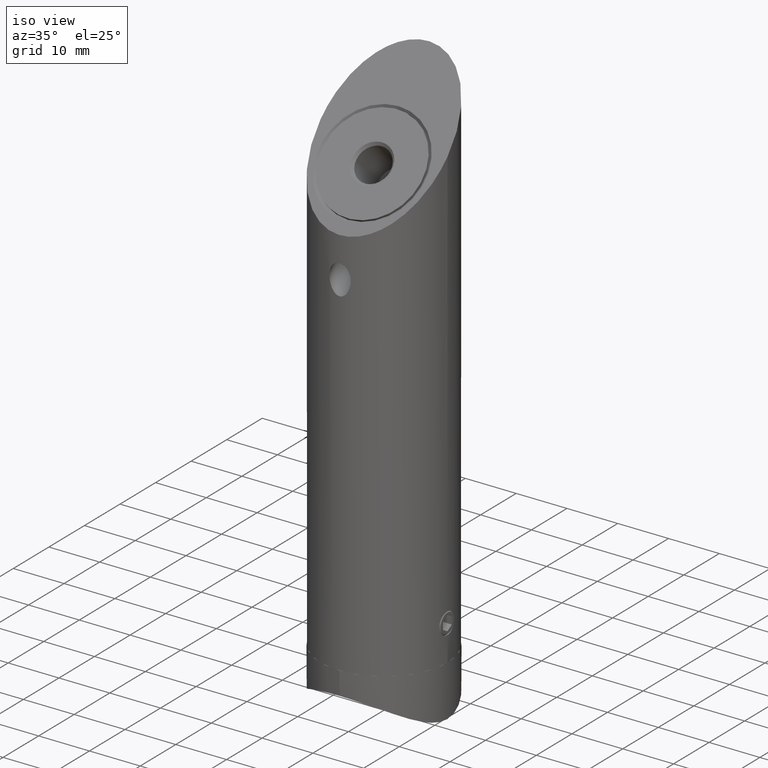
[diagram: clean part render]
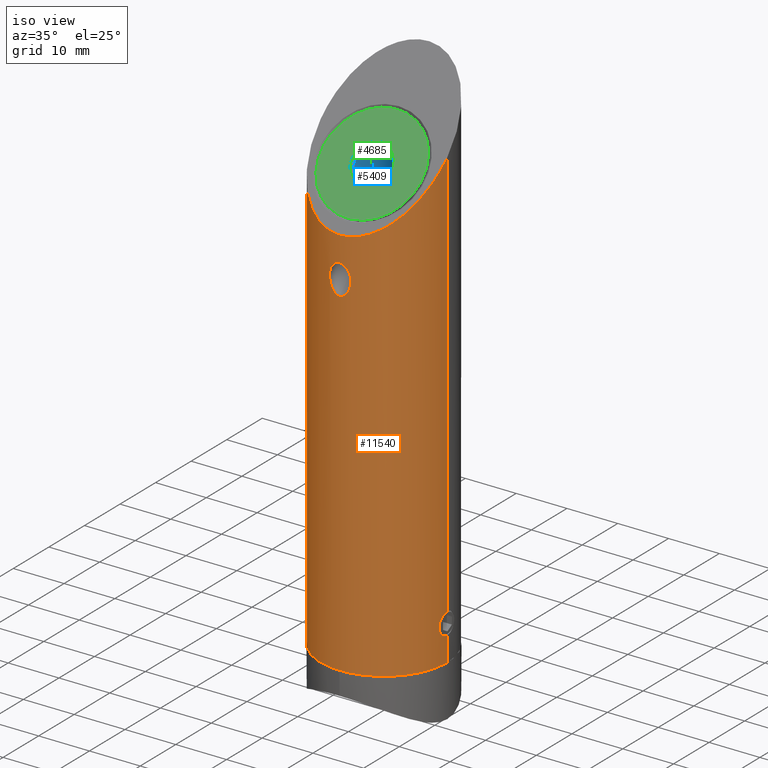
[diagram: same view with three faces highlighted in distinct colors, each labeled with its STEP entity id]
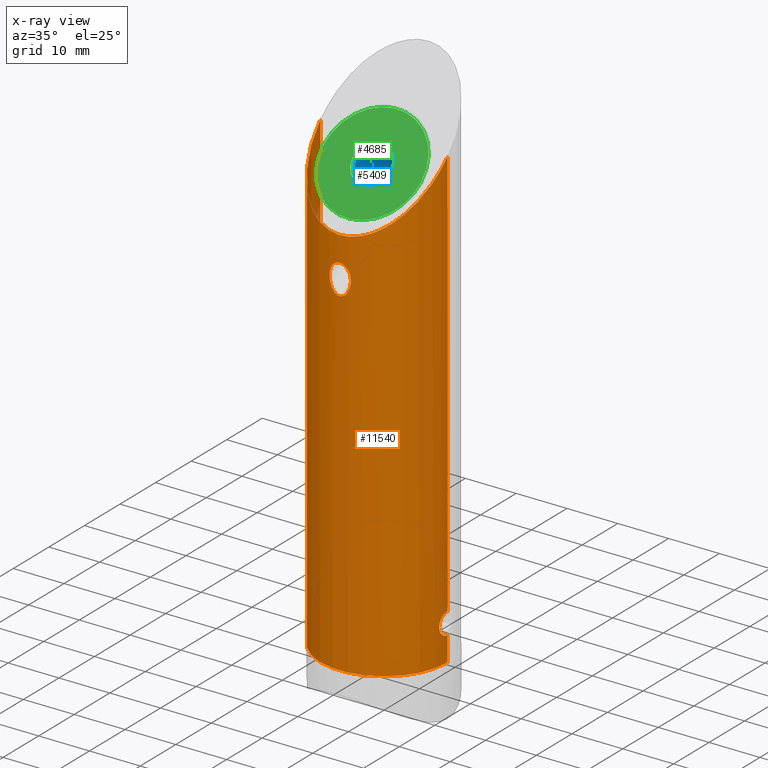
[diagram: x-ray of the same camera — body ghosted, the three highlighted faces saturated]
A machine part, iso view with three faces highlighted in distinct colors.
The next image is the same camera in x-ray (body ghosted, the three faces saturated) — at least one of them is partly hidden behind the body in this view.
Their STEP definitions:

[orange] entity #11540 — the highlighted cylindrical surface (partial cylindrical patch) has radius 12.5 mm, axis along (-0, -0, -1).
#348 = ORIENTED_EDGE ( 'NONE', *, *, #10075, .T. ) ;
#541 = CARTESIAN_POINT ( 'NONE',  ( -1.062516582818185300, -12.45547859006742400, 67.05464212441687300 ) ) ;
#552 = CARTESIAN_POINT ( 'NONE',  ( -12.50000000000000000, 0.0000000000000000000, 90.00000000000000000 ) ) ;
#588 = VERTEX_POINT ( 'NONE', #1897 ) ;
#637 = CARTESIAN_POINT ( 'NONE',  ( 0.1695567976927992400, -12.49999999999999300, 72.55025253169417000 ) ) ;
#654 = CARTESIAN_POINT ( 'NONE',  ( -2.103163457737206300, -12.32179908008548400, 69.79001288612603600 ) ) ;
#692 = EDGE_CURVE ( 'NONE', #588, #11380, #12602, .T. ) ;
#712 = CARTESIAN_POINT ( 'NONE',  ( -0.6518177033581321600, -12.48399674781630600, 66.76388248511807400 ) ) ;
#771 = CARTESIAN_POINT ( 'NONE',  ( -12.36656387944243600, -1.823189292361666800, 5.948889033415843700 ) ) ;
#772 = CARTESIAN_POINT ( 'NONE',  ( -0.6577339198468583600, -12.48370125618959200, 72.42663966130271500 ) ) ;
#835 =( BOUNDED_CURVE ( )  B_SPLINE_CURVE ( 3, ( #4357, #11078, #15218, #15042 ),
 .UNSPECIFIED., .F., .F. ) 
 B_SPLINE_CURVE_WITH_KNOTS ( ( 4, 4 ),
 ( 4.712388980384689700, 7.853981633974482800 ),
 .UNSPECIFIED. ) 
 CURVE ( )  GEOMETRIC_REPRESENTATION_ITEM ( )  RATIONAL_B_SPLINE_CURVE ( ( 1.000000000000000000, 0.3333333333333333700, 0.3333333333333333700, 1.000000000000000000 ) ) 
 REPRESENTATION_ITEM ( '' )  );
#888 = CARTESIAN_POINT ( 'NONE',  ( -12.39980942031196600, -1.582460249035299500, 5.612741714926296600 ) ) ;
#1018 = ORIENTED_EDGE ( 'NONE', *, *, #16261, .F. ) ;
#1263 = CARTESIAN_POINT ( 'NONE',  ( 0.0000000000000000000, 0.0000000000000000000, 105.0000000000000000 ) ) ;
#1512 = CARTESIAN_POINT ( 'NONE',  ( 12.43467607152728100, -1.281348397245132500, 8.669381187940407700 ) ) ;
#1569 = CARTESIAN_POINT ( 'NONE',  ( 12.38831158150507700, -1.678584206747422100, 5.708823716378408800 ) ) ;
#1635 = CARTESIAN_POINT ( 'NONE',  ( 12.50000000000000200, 0.0000000000000000000, 4.900000000000008300 ) ) ;
#1682 = CARTESIAN_POINT ( 'NONE',  ( 12.43473698676050900, -1.280796030087369100, 5.330156330372838100 ) ) ;
#1880 = ORIENTED_EDGE ( 'NONE', *, *, #692, .T. ) ;
#1897 = CARTESIAN_POINT ( 'NONE',  ( -12.50000000000000000, -9.798520189840709700E-023, 9.099999999999992500 ) ) ;
#1991 = CARTESIAN_POINT ( 'NONE',  ( 1.090959842866090700, -12.45310118065757100, 72.17473820949946600 ) ) ;
#2011 = CARTESIAN_POINT ( 'NONE',  ( -1.933220394755653200, -12.34982528506187700, 70.94264168083583400 ) ) ;
#2070 = CARTESIAN_POINT ( 'NONE',  ( -1.812558932214285700, -12.36913040206632700, 71.26170826907900800 ) ) ;
#2133 = CARTESIAN_POINT ( 'NONE',  ( -12.50000000000000000, -0.1389824923851660200, 4.900000000000008300 ) ) ;
#2134 = CARTESIAN_POINT ( 'NONE',  ( -0.1694388445975921200, -12.50000000000000200, 66.61055556972719700 ) ) ;
#2180 = CARTESIAN_POINT ( 'NONE',  ( -12.50000000000000500, -0.2743003893079645200, 9.099999999999992500 ) ) ;
#2219 = CARTESIAN_POINT ( 'NONE',  ( 1.489719814512700900, -12.41119661175083300, 67.56845414696788100 ) ) ;
#2300 = CARTESIAN_POINT ( 'NONE',  ( -12.34024839959371500, -1.992762697854679300, 6.323402791177532100 ) ) ;
#2602 = LINE ( 'NONE', #8563, #3261 ) ;
#2677 = B_SPLINE_CURVE_WITH_KNOTS ( 'NONE', 3,
 ( #10158, #637, #12980, #8982, #14216, #1991, #3539, #14275, #3364, #12855, #4697, #6136, #3476, #14455, #15686, #7507, #17033, #8869, #14336, #13038, #4882, #2219, #6253, #15754, #17154, #10344, #11749, #3596, #13099, #13222 ),
 .UNSPECIFIED., .F., .F.,
 ( 4, 2, 2, 2, 2, 2, 2, 2, 2, 2, 2, 2, 2, 2, 4 ),
 ( 0.0000000000000000000, 0.0005006832540054194800, 0.001001366508010839000, 0.001502049762016258300, 0.002002733016021677900, 0.002503416270027097100, 0.003004099524032516700, 0.004005466032043316000, 0.005006832540054114400, 0.005507515794059513600, 0.006008199048064912800, 0.006508882302070311200, 0.007009565556075710400, 0.007510248810081109600, 0.008010932064086508800 ),
 .UNSPECIFIED. ) ;
#2829 = CARTESIAN_POINT ( 'NONE',  ( 12.33211929933789400, -2.044525624529530500, 6.447994004894129100 ) ) ;
#2886 = CARTESIAN_POINT ( 'NONE',  ( 12.46591754872634700, -0.9311833701841315500, 8.887274739406741700 ) ) ;
#3168 = LINE ( 'NONE', #4736, #15912 ) ;
#3207 = CARTESIAN_POINT ( 'NONE',  ( -2.068616559615548100, -12.32765416876413800, 70.29188526287325100 ) ) ;
#3261 = VECTOR ( 'NONE', #16836, 1000.000000000000000 ) ;
#3364 = CARTESIAN_POINT ( 'NONE',  ( 1.552417140451911600, -12.40353673432070100, 71.68656320522494200 ) ) ;
#3436 = CARTESIAN_POINT ( 'NONE',  ( -12.43448438498407400, -1.292831960822520300, 5.322725580530755200 ) ) ;
#3441 = CARTESIAN_POINT ( 'NONE',  ( -1.220165958684657400, -12.44084112958514000, 72.06580074404666900 ) ) ;
#3476 = CARTESIAN_POINT ( 'NONE',  ( 1.970194185464487300, -12.34381305217784700, 70.77957955059031300 ) ) ;
#3539 = CARTESIAN_POINT ( 'NONE',  ( 1.221010805900625700, -12.44075727652513800, 72.06502474095233900 ) ) ;
#3596 = CARTESIAN_POINT ( 'NONE',  ( 0.3357312727953216700, -12.49648217283905900, 66.64335336704007800 ) ) ;
#3613 = CARTESIAN_POINT ( 'NONE',  ( -12.32465138950227200, -2.086551808546020800, 6.725986784028062700 ) ) ;
#3673 = CARTESIAN_POINT ( 'NONE',  ( -12.45762628977003800, -1.059040836926602000, 5.166092215184479000 ) ) ;
#3706 = VERTEX_POINT ( 'NONE', #3726 ) ;
#3726 = CARTESIAN_POINT ( 'NONE',  ( 2.571702865421324900E-016, -12.50000000000000000, 66.61055556972719700 ) ) ;
#4134 = ORIENTED_EDGE ( 'NONE', *, *, #10269, .T. ) ;
#4151 = ORIENTED_EDGE ( 'NONE', *, *, #6655, .T. ) ;
#4176 = CARTESIAN_POINT ( 'NONE',  ( 12.32235525086057000, -2.099895493303233900, 6.724719178735084000 ) ) ;
#4352 = CARTESIAN_POINT ( 'NONE',  ( 12.36678065982762800, -1.821708534087450100, 8.053593256611790700 ) ) ;
#4357 = CARTESIAN_POINT ( 'NONE',  ( -12.50000000000000000, 0.0000000000000000000, 90.00000000000000000 ) ) ;
#4697 = CARTESIAN_POINT ( 'NONE',  ( 1.799573585952688200, -12.36993633444540600, 71.25238987016250300 ) ) ;
#4707 = CARTESIAN_POINT ( 'NONE',  ( 0.0000000000000000000, -12.49999999999999600, 72.55025253169418400 ) ) ;
#4736 = CARTESIAN_POINT ( 'NONE',  ( 12.50000000000000000, 1.530808498934191500E-015, 105.0000000000000000 ) ) ;
#4754 = CARTESIAN_POINT ( 'NONE',  ( 12.50000000000000000, 1.530808498934191500E-015, 105.0000000000000000 ) ) ;
#4782 = CARTESIAN_POINT ( 'NONE',  ( -1.394374465646651000, -12.42244705244652500, 67.42909625739909500 ) ) ;
#4838 = CARTESIAN_POINT ( 'NONE',  ( -12.46598422166854500, -0.9302022205380884300, 8.887707130181109200 ) ) ;
#4874 = EDGE_CURVE ( 'NONE', #3706, #5945, #5608, .T. ) ;
#4882 = CARTESIAN_POINT ( 'NONE',  ( 1.656507616303224200, -12.39003829608353000, 67.85633748887511300 ) ) ;
#4896 = CARTESIAN_POINT ( 'NONE',  ( -12.36678782163336400, -1.821665953450992900, 8.053695840792912000 ) ) ;
#5019 = CARTESIAN_POINT ( 'NONE',  ( -12.48211517639016300, -0.6802983101495027100, 5.008545626036338100 ) ) ;
#5389 = B_SPLINE_CURVE_WITH_KNOTS ( 'NONE', 3,
 ( #1635, #5729, #10937, #6904, #12506, #5791, #12341, #1682, #8387, #1569, #11067, #2829, #4176, #9622, #16609, #13692, #5548, #15214, #4352, #16413, #13749, #11128, #1512, #11004, #2886, #8444, #11189, #5610, #11371, #11306 ),
 .UNSPECIFIED., .F., .F.,
 ( 4, 2, 2, 2, 2, 2, 2, 2, 2, 2, 2, 2, 2, 2, 4 ),
 ( 0.0000000000000000000, 0.0004110766416146452200, 0.0008221532832292906600, 0.001233229924843936200, 0.001644306566458581800, 0.002466459849687871600, 0.003288613132917160900, 0.003699689774531804900, 0.004110766416146448100, 0.004521843057761092100, 0.004932919699375736200, 0.005343996340990380200, 0.005755072982605024200, 0.006166149624219667400, 0.006577226265834310500 ),
 .UNSPECIFIED. ) ;
#5400 = EDGE_CURVE ( 'NONE', #12987, #16969, #835, .T. ) ;
#5548 = CARTESIAN_POINT ( 'NONE',  ( 12.34023651949286000, -1.992840048957687400, 7.676438418232379500 ) ) ;
#5608 = B_SPLINE_CURVE_WITH_KNOTS ( 'NONE', 3,
 ( #15653, #2134, #14236, #712, #10009, #541, #7527, #4782, #10179, #16921, #8762, #16983, #14293, #654, #12873, #3207, #10122, #2011, #2070, #11530, #17055, #3441, #16797, #8888, #772, #15593, #10240, #8644 ),
 .UNSPECIFIED., .F., .F.,
 ( 4, 2, 2, 2, 2, 2, 2, 2, 2, 2, 2, 2, 2, 4 ),
 ( 0.008010932064086508800, 0.008512058723307517500, 0.009013185382528526200, 0.009514312041749534800, 0.01001543870097054400, 0.01101769201941252300, 0.01201994533785450500, 0.01252107199707547400, 0.01302219865629644300, 0.01402445197473834200, 0.01452557863395929200, 0.01502670529318024000, 0.01552783195240118800, 0.01602895861162213800 ),
 .UNSPECIFIED. ) ;
#5610 = CARTESIAN_POINT ( 'NONE',  ( 12.49766874747620100, -0.2765420468446719800, 9.086247800644377600 ) ) ;
#5634 = EDGE_CURVE ( 'NONE', #5945, #3706, #2677, .T. ) ;
#5729 = CARTESIAN_POINT ( 'NONE',  ( 12.50000000000000000, -0.1390172217368302600, 4.900000000000006600 ) ) ;
#5791 = CARTESIAN_POINT ( 'NONE',  ( 12.46584558724483200, -0.9321576868460942400, 5.113197830952908700 ) ) ;
#5945 = VERTEX_POINT ( 'NONE', #4707 ) ;
#6010 = VECTOR ( 'NONE', #13697, 1000.000000000000000 ) ;
#6136 = CARTESIAN_POINT ( 'NONE',  ( 1.921328298862174900, -12.35161072805821200, 70.94182640018132700 ) ) ;
#6208 = CARTESIAN_POINT ( 'NONE',  ( -12.33368337160504100, -2.032484663200840600, 7.545663143699838900 ) ) ;
#6243 = DIRECTION ( 'NONE',  ( -1.000000000000000000, 0.0000000000000000000, 0.0000000000000000000 ) ) ;
#6253 = CARTESIAN_POINT ( 'NONE',  ( 1.394317185794190500, -12.42245810852875300, 67.42893622471874000 ) ) ;
#6327 = CARTESIAN_POINT ( 'NONE',  ( -12.42317581721323300, -1.387160506701217400, 8.582566766686508000 ) ) ;
#6655 = EDGE_CURVE ( 'NONE', #11928, #8181, #5389, .T. ) ;
#6864 = AXIS2_PLACEMENT_3D ( 'NONE', #1263, #12100, #6243 ) ;
#6904 = CARTESIAN_POINT ( 'NONE',  ( 12.48886249823464400, -0.5444173614143040800, 4.967173697384218700 ) ) ;
#6905 = EDGE_LOOP ( 'NONE', ( #1018, #13025, #348, #1880, #4134, #7166, #8632, #4151 ) ) ;
#6936 = DIRECTION ( 'NONE',  ( 0.0000000000000000000, 0.0000000000000000000, 1.000000000000000000 ) ) ;
#6991 = DIRECTION ( 'NONE',  ( 1.000000000000000000, 0.0000000000000000000, 0.0000000000000000000 ) ) ;
#7166 = ORIENTED_EDGE ( 'NONE', *, *, #10737, .T. ) ;
#7507 = CARTESIAN_POINT ( 'NONE',  ( 2.087190722319383100, -12.32451833115177200, 69.28761469344081500 ) ) ;
#7527 = CARTESIAN_POINT ( 'NONE',  ( -1.181309577726581400, -12.44451600516694300, 67.17308560397290800 ) ) ;
#7536 = ORIENTED_EDGE ( 'NONE', *, *, #5634, .T. ) ;
#7694 = CARTESIAN_POINT ( 'NONE',  ( -12.35677335900392600, -1.887587319264239600, 6.069461948601640300 ) ) ;
#7697 = CYLINDRICAL_SURFACE ( 'NONE', #6864, 12.50000000000000000 ) ;
#7891 = DIRECTION ( 'NONE',  ( -0.0000000000000000000, -0.0000000000000000000, -1.000000000000000000 ) ) ;
#8145 = CIRCLE ( 'NONE', #9023, 12.50000000000000000 ) ;
#8181 = VERTEX_POINT ( 'NONE', #12807 ) ;
#8387 = CARTESIAN_POINT ( 'NONE',  ( 12.42301355294200200, -1.388600539506597500, 5.418708178319337600 ) ) ;
#8444 = CARTESIAN_POINT ( 'NONE',  ( 12.48229535687992700, -0.6771302859603540700, 8.992587008575913600 ) ) ;
#8516 = CARTESIAN_POINT ( 'NONE',  ( 12.50000000000000000, 1.530808498934191500E-015, 90.00000000000000000 ) ) ;
#8563 = CARTESIAN_POINT ( 'NONE',  ( -12.50000000000000000, 0.0000000000000000000, 105.0000000000000000 ) ) ;
#8632 = ORIENTED_EDGE ( 'NONE', *, *, #15465, .F. ) ;
#8644 = CARTESIAN_POINT ( 'NONE',  ( 0.0000000000000000000, -12.49999999999999600, 72.55025253169418400 ) ) ;
#8762 = CARTESIAN_POINT ( 'NONE',  ( -1.863731089242040500, -12.36059557842870000, 68.31108844259782100 ) ) ;
#8869 = CARTESIAN_POINT ( 'NONE',  ( 1.907989453784544100, -12.35360291681648400, 68.47511610239674000 ) ) ;
#8884 = CARTESIAN_POINT ( 'NONE',  ( -12.32232325748718300, -2.100083223394549200, 6.862528515129720400 ) ) ;
#8888 = CARTESIAN_POINT ( 'NONE',  ( -0.8089745488018644800, -12.47460782835023000, 72.35567784560998900 ) ) ;
#8933 = CARTESIAN_POINT ( 'NONE',  ( -12.43465773738692300, -1.281603546142738200, 8.669267826619059000 ) ) ;
#8982 = CARTESIAN_POINT ( 'NONE',  ( 0.6560218788921098300, -12.48380994557245500, 72.42749215261810000 ) ) ;
#8999 = CARTESIAN_POINT ( 'NONE',  ( -12.45612933409646500, -1.052645575539819200, 8.822333673828039100 ) ) ;
#9023 = AXIS2_PLACEMENT_3D ( 'NONE', #13774, #6936, #6991 ) ;
#9051 = CARTESIAN_POINT ( 'NONE',  ( -12.40001885819545400, -1.580836478937782500, 8.389132056080981700 ) ) ;
#9110 = CARTESIAN_POINT ( 'NONE',  ( -12.50000000000000000, 0.0000000000000000000, 4.900000000000008300 ) ) ;
#9622 = CARTESIAN_POINT ( 'NONE',  ( 12.32232857426643800, -2.100052025693295300, 7.136442818496754500 ) ) ;
#9761 = ORIENTED_EDGE ( 'NONE', *, *, #4874, .T. ) ;
#9786 = CARTESIAN_POINT ( 'NONE',  ( -12.50000000000000000, 0.0000000000000000000, 4.900000000000008300 ) ) ;
#9800 = FACE_OUTER_BOUND ( 'NONE', #6905, .T. ) ;
#10009 = CARTESIAN_POINT ( 'NONE',  ( -0.7957615572058951400, -12.47536179597469900, 66.84863762294534700 ) ) ;
#10075 = EDGE_CURVE ( 'NONE', #12987, #588, #13015, .T. ) ;
#10122 = CARTESIAN_POINT ( 'NONE',  ( -2.043276604935249100, -12.33192613229123900, 70.45628163866332700 ) ) ;
#10158 = CARTESIAN_POINT ( 'NONE',  ( 0.0000000000000000000, -12.49999999999999600, 72.55025253169418400 ) ) ;
#10179 = CARTESIAN_POINT ( 'NONE',  ( -1.489881718829537900, -12.41117948570236800, 67.56863364926971400 ) ) ;
#10238 = CARTESIAN_POINT ( 'NONE',  ( -12.49768328457755700, -0.2762664775608880700, 4.913662719431551200 ) ) ;
#10240 = CARTESIAN_POINT ( 'NONE',  ( -0.1697069572354457100, -12.49999999999999600, 72.55025253169417000 ) ) ;
#10269 = EDGE_CURVE ( 'NONE', #11380, #17587, #2602, .T. ) ;
#10344 = CARTESIAN_POINT ( 'NONE',  ( 0.7953178218843143200, -12.47538963836549500, 66.84836072979541700 ) ) ;
#10511 = VECTOR ( 'NONE', #12910, 1000.000000000000000 ) ;
#10737 = EDGE_CURVE ( 'NONE', #17587, #12776, #8145, .T. ) ;
#10937 = CARTESIAN_POINT ( 'NONE',  ( 12.49768326621186700, -0.2756623671610638500, 4.913667500289800000 ) ) ;
#11004 = CARTESIAN_POINT ( 'NONE',  ( 12.45599735624381500, -1.054112223713819400, 8.821410081664508200 ) ) ;
#11067 = CARTESIAN_POINT ( 'NONE',  ( 12.36503985059749600, -1.834949845526010700, 5.942760806442192800 ) ) ;
#11078 = CARTESIAN_POINT ( 'NONE',  ( -12.50000000000001100, -25.00000000000000000, 65.00000000000008500 ) ) ;
#11128 = CARTESIAN_POINT ( 'NONE',  ( 12.42318353256700700, -1.387157736859880600, 8.582691118360699500 ) ) ;
#11189 = CARTESIAN_POINT ( 'NONE',  ( 12.48878923632492300, -0.5462078688293371400, 9.032378496588526300 ) ) ;
#11304 = CARTESIAN_POINT ( 'NONE',  ( 12.50000000000000000, 1.530808498934191500E-015, 0.0000000000000000000 ) ) ;
#11306 = CARTESIAN_POINT ( 'NONE',  ( 12.50000000000000000, 1.530808596919075700E-015, 9.099999999999992500 ) ) ;
#11371 = CARTESIAN_POINT ( 'NONE',  ( 12.50000000000000700, -0.1371844661457294900, 9.099999999999997900 ) ) ;
#11380 = VERTEX_POINT ( 'NONE', #9786 ) ;
#11530 = CARTESIAN_POINT ( 'NONE',  ( -1.551765059550280300, -12.40361698846254200, 71.68743303291358900 ) ) ;
#11540 = ADVANCED_FACE ( 'NONE', ( #9800, #14066 ), #7697, .T. ) ;
#11705 = CARTESIAN_POINT ( 'NONE',  ( -12.32472383621019900, -2.086126021674019600, 7.277164922444294200 ) ) ;
#11749 = CARTESIAN_POINT ( 'NONE',  ( 0.6503334312709719800, -12.48406378595481700, 66.76323119549957100 ) ) ;
#11828 = CARTESIAN_POINT ( 'NONE',  ( -12.38825472392713300, -1.669446844424482100, 8.281284123256018100 ) ) ;
#11891 = EDGE_LOOP ( 'NONE', ( #7536, #9761 ) ) ;
#11928 = VERTEX_POINT ( 'NONE', #13146 ) ;
#12100 = DIRECTION ( 'NONE',  ( -0.0000000000000000000, -0.0000000000000000000, -1.000000000000000000 ) ) ;
#12341 = CARTESIAN_POINT ( 'NONE',  ( 12.45612162279730000, -1.052690134217552300, 5.177732227963601600 ) ) ;
#12506 = CARTESIAN_POINT ( 'NONE',  ( 12.48225234873649100, -0.6779383900031855600, 5.007679765291994700 ) ) ;
#12602 = B_SPLINE_CURVE_WITH_KNOTS ( 'NONE', 3,
 ( #12996, #2180, #13052, #4838, #8999, #8933, #6327, #9051, #11828, #4896, #14351, #14474, #6208, #11705, #15705, #8884, #3613, #13174, #2300, #7694, #771, #17234, #888, #3436, #3673, #5019, #15894, #10238, #2133, #9110 ),
 .UNSPECIFIED., .F., .F.,
 ( 4, 2, 2, 2, 2, 2, 2, 2, 2, 2, 2, 2, 2, 2, 4 ),
 ( 0.006577226265834309700, 0.007399174158320363400, 0.007810148104563389500, 0.008221122050806415500, 0.008632095997049442400, 0.009043069943292467500, 0.009454043889535494400, 0.009865017835778519500, 0.01027599178202154600, 0.01068696572826457300, 0.01109793967450760000, 0.01150891362075062500, 0.01233086151323667700, 0.01274183545947970400, 0.01315280940572272900 ),
 .UNSPECIFIED. ) ;
#12776 = VERTEX_POINT ( 'NONE', #11304 ) ;
#12807 = CARTESIAN_POINT ( 'NONE',  ( 12.50000000000000000, 1.530808596919075700E-015, 9.099999999999992500 ) ) ;
#12855 = CARTESIAN_POINT ( 'NONE',  ( 1.726654244665867000, -12.38048414307733600, 71.40174415246373500 ) ) ;
#12861 = LINE ( 'NONE', #4754, #10511 ) ;
#12873 = CARTESIAN_POINT ( 'NONE',  ( -2.098638907237591500, -12.32257872818802500, 69.95893567644687000 ) ) ;
#12910 = DIRECTION ( 'NONE',  ( -0.0000000000000000000, -0.0000000000000000000, -1.000000000000000000 ) ) ;
#12980 = CARTESIAN_POINT ( 'NONE',  ( 0.3345574896577425100, -12.49655739589399100, 72.52508036511980500 ) ) ;
#12987 = VERTEX_POINT ( 'NONE', #552 ) ;
#12996 = CARTESIAN_POINT ( 'NONE',  ( -12.50000000000000000, -9.798520189840709700E-023, 9.099999999999992500 ) ) ;
#13015 = LINE ( 'NONE', #16137, #6010 ) ;
#13025 = ORIENTED_EDGE ( 'NONE', *, *, #5400, .F. ) ;
#13038 = CARTESIAN_POINT ( 'NONE',  ( 1.728864161166436400, -12.38002675521236800, 68.00594445618332900 ) ) ;
#13052 = CARTESIAN_POINT ( 'NONE',  ( -12.49041604070637100, -0.5510555997337223100, 9.044797116518989100 ) ) ;
#13099 = CARTESIAN_POINT ( 'NONE',  ( 0.1692889222854759800, -12.50000000000000000, 66.61055556972718300 ) ) ;
#13146 = CARTESIAN_POINT ( 'NONE',  ( 12.50000000000000200, 0.0000000000000000000, 4.900000000000008300 ) ) ;
#13174 = CARTESIAN_POINT ( 'NONE',  ( -12.33355821179406500, -2.033241785620691900, 6.457128437399847900 ) ) ;
#13222 = CARTESIAN_POINT ( 'NONE',  ( 2.571702865421324900E-016, -12.50000000000000000, 66.61055556972719700 ) ) ;
#13266 = CARTESIAN_POINT ( 'NONE',  ( -12.50000000000000000, 0.0000000000000000000, 0.0000000000000000000 ) ) ;
#13692 = CARTESIAN_POINT ( 'NONE',  ( 12.33366651879308900, -2.032587617967183600, 7.545409373495503200 ) ) ;
#13697 = DIRECTION ( 'NONE',  ( -0.0000000000000000000, -0.0000000000000000000, -1.000000000000000000 ) ) ;
#13749 = CARTESIAN_POINT ( 'NONE',  ( 12.39978901785039700, -1.582696428115955200, 8.387151678619561700 ) ) ;
#13774 = CARTESIAN_POINT ( 'NONE',  ( 0.0000000000000000000, 0.0000000000000000000, 0.0000000000000000000 ) ) ;
#14066 = FACE_BOUND ( 'NONE', #11891, .T. ) ;
#14216 = CARTESIAN_POINT ( 'NONE',  ( 0.8094832433817890100, -12.47456048416638700, 72.35525938149862700 ) ) ;
#14236 = CARTESIAN_POINT ( 'NONE',  ( -0.3355769353875537300, -12.49649667860297200, 66.64320920313281200 ) ) ;
#14275 = CARTESIAN_POINT ( 'NONE',  ( 1.450419029296091900, -12.41610219195199100, 71.82225513370266900 ) ) ;
#14293 = CARTESIAN_POINT ( 'NONE',  ( -2.087209683469079200, -12.32451508729892900, 69.28959555494515100 ) ) ;
#14336 = CARTESIAN_POINT ( 'NONE',  ( 1.854576077750409400, -12.36181949873786900, 68.31496766473031800 ) ) ;
#14351 = CARTESIAN_POINT ( 'NONE',  ( -12.35697594623955100, -1.886269248244661000, 7.933261081111706600 ) ) ;
#14455 = CARTESIAN_POINT ( 'NONE',  ( 2.080424189492171600, -12.32588245822555500, 70.29144979061602800 ) ) ;
#14474 = CARTESIAN_POINT ( 'NONE',  ( -12.34036526571288800, -1.992047017919820900, 7.678775810402827400 ) ) ;
#15042 = CARTESIAN_POINT ( 'NONE',  ( 12.50000000000000000, 1.530808498934191500E-015, 90.00000000000000000 ) ) ;
#15214 = CARTESIAN_POINT ( 'NONE',  ( 12.35680486868405800, -1.887385030941204800, 7.930998463677289200 ) ) ;
#15218 = CARTESIAN_POINT ( 'NONE',  ( 12.50000000000000500, -25.00000000000000000, 65.00000000000008500 ) ) ;
#15465 = EDGE_CURVE ( 'NONE', #11928, #12776, #3168, .T. ) ;
#15593 = CARTESIAN_POINT ( 'NONE',  ( -0.3391711672260856500, -12.49641444104784500, 72.52400599180236900 ) ) ;
#15653 = CARTESIAN_POINT ( 'NONE',  ( 2.571702865421324900E-016, -12.50000000000000000, 66.61055556972719700 ) ) ;
#15686 = CARTESIAN_POINT ( 'NONE',  ( 2.108535972990405400, -12.32088443484629200, 69.95991941073633300 ) ) ;
#15705 = CARTESIAN_POINT ( 'NONE',  ( -12.32235175367555500, -2.099916014006706400, 7.140002458742227300 ) ) ;
#15754 = CARTESIAN_POINT ( 'NONE',  ( 1.180186332135796800, -12.44462719787911500, 67.17182766653992600 ) ) ;
#15894 = CARTESIAN_POINT ( 'NONE',  ( -12.48874150837816500, -0.5474908082748954900, 4.967912346927882100 ) ) ;
#15912 = VECTOR ( 'NONE', #7891, 1000.000000000000000 ) ;
#16137 = CARTESIAN_POINT ( 'NONE',  ( -12.50000000000000000, 0.0000000000000000000, 105.0000000000000000 ) ) ;
#16261 = EDGE_CURVE ( 'NONE', #16969, #8181, #12861, .T. ) ;
#16413 = CARTESIAN_POINT ( 'NONE',  ( 12.38820982123450100, -1.669773426702773300, 8.280834664202281200 ) ) ;
#16609 = CARTESIAN_POINT ( 'NONE',  ( 12.32468933921310500, -2.086330489974693100, 7.275878408021033500 ) ) ;
#16797 = CARTESIAN_POINT ( 'NONE',  ( -1.092966895672802300, -12.45293955886357700, 72.17335830601739100 ) ) ;
#16836 = DIRECTION ( 'NONE',  ( -0.0000000000000000000, -0.0000000000000000000, -1.000000000000000000 ) ) ;
#16921 = CARTESIAN_POINT ( 'NONE',  ( -1.741074438800952700, -12.37930348800937000, 68.00250447561586500 ) ) ;
#16969 = VERTEX_POINT ( 'NONE', #8516 ) ;
#16983 = CARTESIAN_POINT ( 'NONE',  ( -2.038387258355080200, -12.33299614900831800, 68.95909702520796700 ) ) ;
#17033 = CARTESIAN_POINT ( 'NONE',  ( 2.038127827288124900, -12.33303490987327000, 68.95849548961587100 ) ) ;
#17055 = CARTESIAN_POINT ( 'NONE',  ( -1.449782204318501800, -12.41617753329709700, 71.82304634012263000 ) ) ;
#17154 = CARTESIAN_POINT ( 'NONE',  ( 1.061989134058174600, -12.45552311811857700, 67.05416924914460700 ) ) ;
#17234 = CARTESIAN_POINT ( 'NONE',  ( -12.38807301078725200, -1.670798748957214900, 5.720435620869854400 ) ) ;
#17587 = VERTEX_POINT ( 'NONE', #13266 ) ;

[blue] entity #5409 — the highlighted cylindrical surface (edge-blend (fillet) strip) has radius 3.4 mm, axis along (-0, 0.7071, -0.7071).
#103 = ORIENTED_EDGE ( 'NONE', *, *, #15444, .T. ) ;
#1575 = DIRECTION ( 'NONE',  ( -1.942890293094023500E-016, -5.102127870520029900E-016, 1.000000000000000000 ) ) ;
#2674 = CARTESIAN_POINT ( 'NONE',  ( -1.106892355551280900E-014, 9.800000000000000700, 3.399999999999993700 ) ) ;
#2774 = CARTESIAN_POINT ( 'NONE',  ( 0.0000000000000000000, 9.300000000000016700, 0.0000000000000000000 ) ) ;
#2776 = CARTESIAN_POINT ( 'NONE',  ( -1.040834085586084300E-014, 9.800000000000002500, 0.0000000000000000000 ) ) ;
#3073 = CYLINDRICAL_SURFACE ( 'NONE', #4257, 3.399999999999993700 ) ;
#3149 = DIRECTION ( 'NONE',  ( 1.942890293094023500E-016, 2.869946927167517100E-016, -1.000000000000000000 ) ) ;
#3573 = DIRECTION ( 'NONE',  ( 0.0000000000000000000, 1.000000000000000000, -5.551115123125829500E-017 ) ) ;
#3583 = AXIS2_PLACEMENT_3D ( 'NONE', #9821, #16692, #3149 ) ;
#3739 = EDGE_CURVE ( 'NONE', #12960, #16272, #16840, .T. ) ;
#4127 = DIRECTION ( 'NONE',  ( 0.0000000000000000000, 1.000000000000000000, -5.551115123125829500E-017 ) ) ;
#4257 = AXIS2_PLACEMENT_3D ( 'NONE', #2776, #4127, #12292 ) ;
#4297 = DIRECTION ( 'NONE',  ( 0.0000000000000000000, 1.000000000000000000, -5.551115123125829500E-017 ) ) ;
#5330 = CIRCLE ( 'NONE', #3583, 3.399999999999993700 ) ;
#5409 = ADVANCED_FACE ( 'NONE', ( #10273 ), #3073, .F. ) ;
#5497 = VECTOR ( 'NONE', #3573, 1000.000000000000000 ) ;
#5636 = DIRECTION ( 'NONE',  ( 0.0000000000000000000, 1.000000000000000000, -5.551115123125829500E-017 ) ) ;
#7155 = VERTEX_POINT ( 'NONE', #16057 ) ;
#7592 = CARTESIAN_POINT ( 'NONE',  ( -9.331378244498780000E-015, 9.800000000000004300, -3.399999999999993700 ) ) ;
#8651 = CARTESIAN_POINT ( 'NONE',  ( -9.331378244498778400E-015, 9.300000000000016700, -3.399999999999992800 ) ) ;
#9094 = LINE ( 'NONE', #7592, #5497 ) ;
#9821 = CARTESIAN_POINT ( 'NONE',  ( 0.0000000000000000000, 0.5000000000000004400, 0.0000000000000000000 ) ) ;
#10150 = CARTESIAN_POINT ( 'NONE',  ( -6.605826996519667800E-016, 9.300000000000014900, 3.399999999999993700 ) ) ;
#10273 = FACE_OUTER_BOUND ( 'NONE', #13119, .T. ) ;
#10670 = EDGE_CURVE ( 'NONE', #7155, #16272, #12377, .T. ) ;
#10783 = ORIENTED_EDGE ( 'NONE', *, *, #3739, .T. ) ;
#10851 = EDGE_CURVE ( 'NONE', #7155, #15816, #5330, .T. ) ;
#11586 = CARTESIAN_POINT ( 'NONE',  ( -9.331378244498778400E-015, 0.5000000000000002200, -3.399999999999992800 ) ) ;
#12292 = DIRECTION ( 'NONE',  ( -1.942890293094022000E-016, -5.102127870520029900E-016, 1.000000000000000000 ) ) ;
#12377 = LINE ( 'NONE', #2674, #12481 ) ;
#12481 = VECTOR ( 'NONE', #5636, 1000.000000000000000 ) ;
#12960 = VERTEX_POINT ( 'NONE', #8651 ) ;
#13119 = EDGE_LOOP ( 'NONE', ( #15703, #103, #10783, #13734 ) ) ;
#13734 = ORIENTED_EDGE ( 'NONE', *, *, #10670, .F. ) ;
#14826 = AXIS2_PLACEMENT_3D ( 'NONE', #2774, #4297, #1575 ) ;
#15444 = EDGE_CURVE ( 'NONE', #15816, #12960, #9094, .T. ) ;
#15703 = ORIENTED_EDGE ( 'NONE', *, *, #10851, .T. ) ;
#15816 = VERTEX_POINT ( 'NONE', #11586 ) ;
#16057 = CARTESIAN_POINT ( 'NONE',  ( -1.106892355551280600E-014, 0.5000000000000006700, 3.399999999999992800 ) ) ;
#16272 = VERTEX_POINT ( 'NONE', #10150 ) ;
#16692 = DIRECTION ( 'NONE',  ( 0.0000000000000000000, -1.000000000000000000, 5.551115123125829500E-017 ) ) ;
#16840 = CIRCLE ( 'NONE', #14826, 3.399999999999993700 ) ;

[green] entity #4685 — the highlighted planar face has unit normal (-0, -0.7071, 0.7071).
#188 = CARTESIAN_POINT ( 'NONE',  ( 0.0000000000000000000, 0.0000000000000000000, 0.0000000000000000000 ) ) ;
#945 = VERTEX_POINT ( 'NONE', #11418 ) ;
#1112 = AXIS2_PLACEMENT_3D ( 'NONE', #16206, #1297, #10776 ) ;
#1297 = DIRECTION ( 'NONE',  ( -0.0000000000000000000, 1.000000000000000000, -5.551115123125829500E-017 ) ) ;
#2032 = DIRECTION ( 'NONE',  ( 1.942890293094023500E-016, 2.775557561562890900E-016, -1.000000000000000000 ) ) ;
#2246 = CIRCLE ( 'NONE', #6568, 9.950000000000001100 ) ;
#2947 = EDGE_CURVE ( 'NONE', #8943, #3475, #15649, .T. ) ;
#3421 = VERTEX_POINT ( 'NONE', #7790 ) ;
#3475 = VERTEX_POINT ( 'NONE', #5287 ) ;
#4367 = FACE_OUTER_BOUND ( 'NONE', #12033, .T. ) ;
#4685 = ADVANCED_FACE ( 'NONE', ( #14569, #4367 ), #16883, .T. ) ;
#5287 = CARTESIAN_POINT ( 'NONE',  ( -7.146522764769471700E-016, 5.523359547510569500E-016, 9.949999999999999300 ) ) ;
#5524 = DIRECTION ( 'NONE',  ( -0.0000000000000000000, 1.000000000000000000, -5.551115123125829500E-017 ) ) ;
#5569 = CIRCLE ( 'NONE', #13490, 3.899999999999998100 ) ;
#6568 = AXIS2_PLACEMENT_3D ( 'NONE', #16301, #13573, #10765 ) ;
#6820 = CARTESIAN_POINT ( 'NONE',  ( 0.0000000000000000000, 0.0000000000000000000, 0.0000000000000000000 ) ) ;
#7198 = AXIS2_PLACEMENT_3D ( 'NONE', #188, #15131, #9655 ) ;
#7790 = CARTESIAN_POINT ( 'NONE',  ( 7.577272143066690600E-016, -2.164934898019074900E-016, -3.899999999999999500 ) ) ;
#8186 = DIRECTION ( 'NONE',  ( 1.942890293094023500E-016, 2.775557561562890900E-016, -1.000000000000000000 ) ) ;
#8721 = DIRECTION ( 'NONE',  ( 6.471124613141120100E-032, -1.000000000000000000, -2.775557561562890900E-016 ) ) ;
#8943 = VERTEX_POINT ( 'NONE', #15357 ) ;
#9655 = DIRECTION ( 'NONE',  ( 1.942890293094023500E-016, 2.775557561562890900E-016, -1.000000000000000000 ) ) ;
#10765 = DIRECTION ( 'NONE',  ( 1.942890293094023500E-016, 2.775557561562890900E-016, -1.000000000000000000 ) ) ;
#10776 = DIRECTION ( 'NONE',  ( 1.942890293094023500E-016, 2.775557561562890900E-016, -1.000000000000000000 ) ) ;
#10970 = EDGE_LOOP ( 'NONE', ( #11337, #11961 ) ) ;
#11322 = AXIS2_PLACEMENT_3D ( 'NONE', #16817, #8721, #2032 ) ;
#11337 = ORIENTED_EDGE ( 'NONE', *, *, #16833, .T. ) ;
#11418 = CARTESIAN_POINT ( 'NONE',  ( -2.801149626392052300E-016, 2.164934898019074900E-016, 3.899999999999996800 ) ) ;
#11961 = ORIENTED_EDGE ( 'NONE', *, *, #12096, .T. ) ;
#12033 = EDGE_LOOP ( 'NONE', ( #15220, #15404 ) ) ;
#12096 = EDGE_CURVE ( 'NONE', #945, #3421, #5569, .T. ) ;
#12243 = CIRCLE ( 'NONE', #1112, 3.899999999999998100 ) ;
#13490 = AXIS2_PLACEMENT_3D ( 'NONE', #6820, #5524, #8186 ) ;
#13573 = DIRECTION ( 'NONE',  ( 0.0000000000000000000, -1.000000000000000000, 5.551115123125829500E-017 ) ) ;
#14569 = FACE_BOUND ( 'NONE', #10970, .T. ) ;
#15131 = DIRECTION ( 'NONE',  ( 0.0000000000000000000, -1.000000000000000000, 5.551115123125829500E-017 ) ) ;
#15220 = ORIENTED_EDGE ( 'NONE', *, *, #2947, .T. ) ;
#15357 = CARTESIAN_POINT ( 'NONE',  ( 1.933175841628553600E-015, 2.761679773755076500E-015, -9.950000000000001100 ) ) ;
#15404 = ORIENTED_EDGE ( 'NONE', *, *, #16136, .T. ) ;
#15649 = CIRCLE ( 'NONE', #7198, 9.950000000000001100 ) ;
#16136 = EDGE_CURVE ( 'NONE', #3475, #8943, #2246, .T. ) ;
#16206 = CARTESIAN_POINT ( 'NONE',  ( 0.0000000000000000000, 0.0000000000000000000, 0.0000000000000000000 ) ) ;
#16301 = CARTESIAN_POINT ( 'NONE',  ( 0.0000000000000000000, 0.0000000000000000000, 0.0000000000000000000 ) ) ;
#16817 = CARTESIAN_POINT ( 'NONE',  ( 9.950000000000025900, 1.387778780781445700E-014, -6.938893903907228400E-015 ) ) ;
#16833 = EDGE_CURVE ( 'NONE', #3421, #945, #12243, .T. ) ;
#16883 = PLANE ( 'NONE',  #11322 ) ;